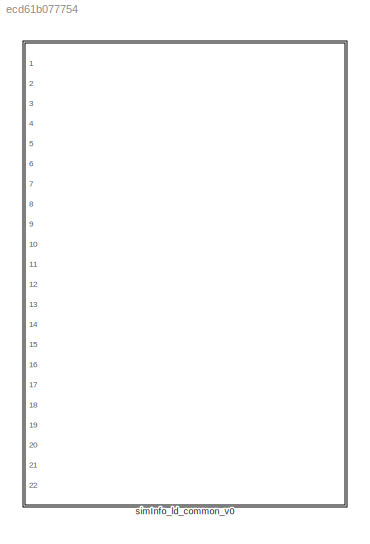
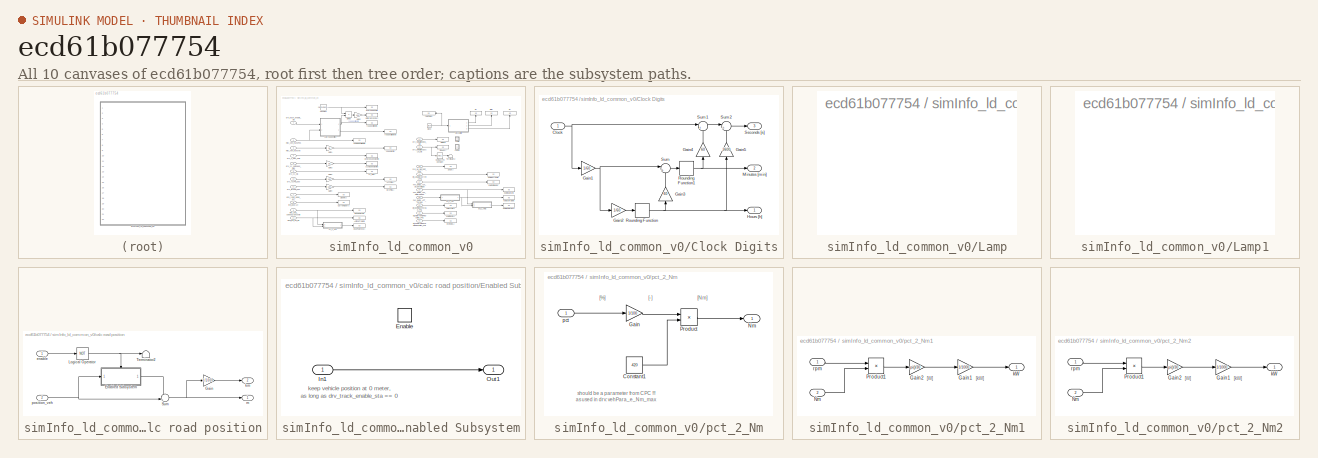
[diagram: thumbnail index - all 10 canvases of the model, root first then tree order]
MODEL slx_ecd61b077754
KIND library
CONFIG AbsTol = auto
CONFIG FixedStep = auto
CONFIG MaxStep = auto
CONFIG MinStep = auto
CONFIG RelTol = 1e-3
CONFIG SampleTimeConstraint = Unconstrained
CONFIG Solver = ode45
CONFIG SolverMode = Auto
CONFIG SolverName = ode45
CONFIG StartTime = 0.0
CONFIG StopTime = 10.0
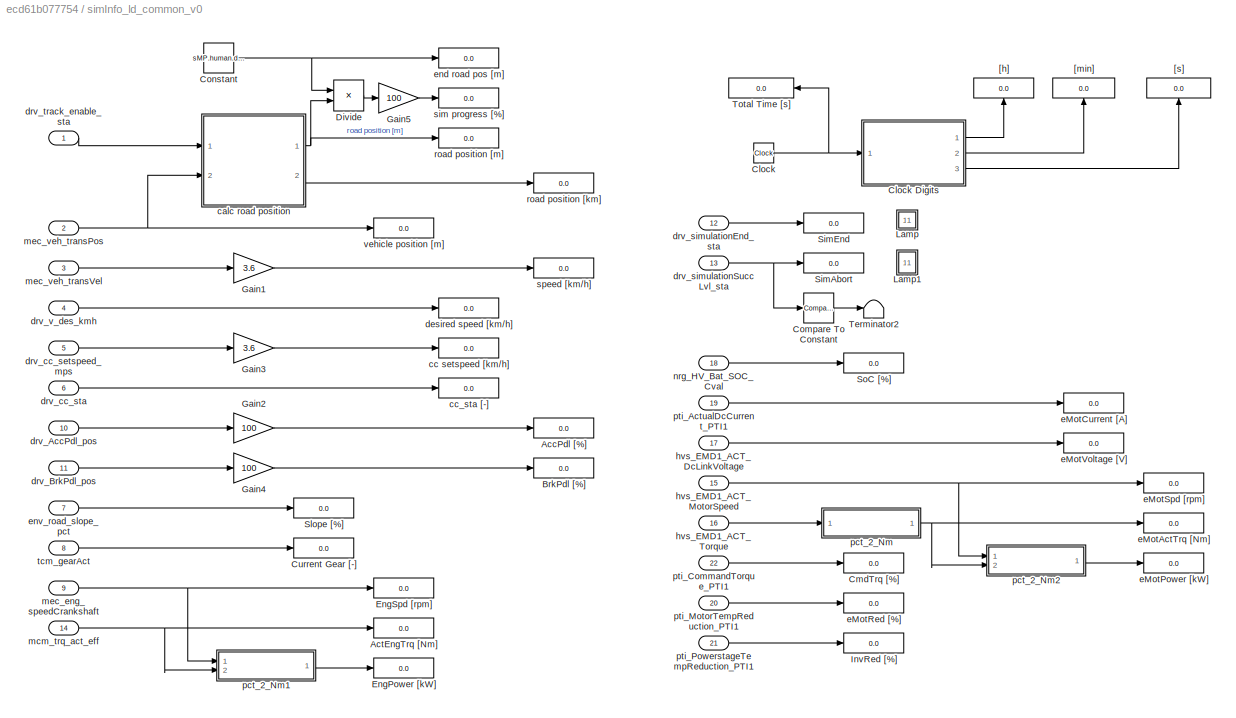
BLOCK [SubSystem] simInfo_ld_common_v0
  Ports = [22]
  RequestExecContextInheritance = off
  Variant = off
  VariantControl = voSimInfo_SIMINFO
BLOCK [Display] simInfo_ld_common_v0/AccPdl [%]
  Decimation = 1
  Format = bank
  Ports = [1]
BLOCK [Display] simInfo_ld_common_v0/ActEngTrq [Nm]
  Decimation = 1
  Format = bank
  Ports = [1]
BLOCK [Display] simInfo_ld_common_v0/BrkPdl [%]
  Decimation = 1
  Format = bank
  Ports = [1]
BLOCK [Clock] simInfo_ld_common_v0/Clock
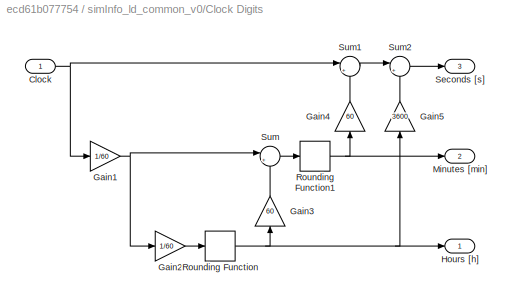
BLOCK [SubSystem] simInfo_ld_common_v0/Clock Digits
  Ports = [1, 3]
  RequestExecContextInheritance = off
  Variant = off
BLOCK [Inport] simInfo_ld_common_v0/Clock Digits/Clock
  IconDisplay = Port number
BLOCK [Gain] simInfo_ld_common_v0/Clock Digits/Gain1
  Gain = 1/60
  OutDataTypeStr = Inherit: Inherit via internal rule
  ParamDataTypeStr = Inherit: Inherit via internal rule
  SaturateOnIntegerOverflow = off
BLOCK [Gain] simInfo_ld_common_v0/Clock Digits/Gain2
  Gain = 1/60
  OutDataTypeStr = Inherit: Inherit via internal rule
  ParamDataTypeStr = Inherit: Inherit via internal rule
  SaturateOnIntegerOverflow = off
BLOCK [Gain] simInfo_ld_common_v0/Clock Digits/Gain3
  Gain = 60
  OutDataTypeStr = Inherit: Inherit via internal rule
  ParamDataTypeStr = Inherit: Inherit via internal rule
  SaturateOnIntegerOverflow = off
BLOCK [Gain] simInfo_ld_common_v0/Clock Digits/Gain4
  Gain = 60
  OutDataTypeStr = Inherit: Inherit via internal rule
  ParamDataTypeStr = Inherit: Inherit via internal rule
  SaturateOnIntegerOverflow = off
BLOCK [Gain] simInfo_ld_common_v0/Clock Digits/Gain5
  Gain = 3600
  OutDataTypeStr = Inherit: Inherit via internal rule
  ParamDataTypeStr = Inherit: Inherit via internal rule
  SaturateOnIntegerOverflow = off
BLOCK [Outport] simInfo_ld_common_v0/Clock Digits/Hours [h]
  IconDisplay = Port number
BLOCK [Outport] simInfo_ld_common_v0/Clock Digits/Minutes [min]
  IconDisplay = Port number
  Port = 2
BLOCK [Rounding] simInfo_ld_common_v0/Clock Digits/Rounding Function
BLOCK [Rounding] simInfo_ld_common_v0/Clock Digits/Rounding Function1
BLOCK [Outport] simInfo_ld_common_v0/Clock Digits/Seconds [s]
  IconDisplay = Port number
  Port = 3
BLOCK [Sum] simInfo_ld_common_v0/Clock Digits/Sum
  IconShape = round
  InputSameDT = off
  Inputs = |+-
  OutDataTypeStr = Inherit: Inherit via internal rule
  Ports = [2, 1]
  SaturateOnIntegerOverflow = off
BLOCK [Sum] simInfo_ld_common_v0/Clock Digits/Sum1
  IconShape = round
  InputSameDT = off
  Inputs = |+-
  OutDataTypeStr = Inherit: Inherit via internal rule
  Ports = [2, 1]
  SaturateOnIntegerOverflow = off
BLOCK [Sum] simInfo_ld_common_v0/Clock Digits/Sum2
  IconShape = round
  InputSameDT = off
  Inputs = |+-
  OutDataTypeStr = Inherit: Inherit via internal rule
  Ports = [2, 1]
  SaturateOnIntegerOverflow = off
BLOCK [Display] simInfo_ld_common_v0/CmdTrq [%]
  Decimation = 1
  Format = bank
  Ports = [1]
BLOCK [Reference] simInfo_ld_common_v0/Compare To Constant  REF=simulink/Logic and Bit
Operations/Compare
To Constant
  Ports = [1, 1]
  SourceBlock = simulink/Logic and Bit\nOperations/Compare\nTo Constant
  SourceType = Compare To Constant
BLOCK [Constant] simInfo_ld_common_v0/Constant
  AttributesFormatString = %<Value>
  Value = sMP.human.drv.cyc.track.m_Way(end,1)
BLOCK [Display] simInfo_ld_common_v0/Current Gear [-]
  Decimation = 2
  Ports = [1]
BLOCK [Product] simInfo_ld_common_v0/Divide
  InputSameDT = off
  Inputs = /*
  OutDataTypeStr = Inherit: Inherit via internal rule
  Ports = [2, 1]
  RndMeth = Floor
  SaturateOnIntegerOverflow = off
BLOCK [Display] simInfo_ld_common_v0/EngPower [kW]
  Decimation = 1
  Format = bank
  Ports = [1]
BLOCK [Display] simInfo_ld_common_v0/EngSpd [rpm]
  Decimation = 1
  Format = bank
  Ports = [1]
BLOCK [Gain] simInfo_ld_common_v0/Gain1
  Gain = 3.6
  OutDataTypeStr = Inherit: Inherit via internal rule
  ParamDataTypeStr = Inherit: Inherit via internal rule
  SaturateOnIntegerOverflow = off
BLOCK [Gain] simInfo_ld_common_v0/Gain2
  Gain = 100
  OutDataTypeStr = Inherit: Inherit via internal rule
  ParamDataTypeStr = Inherit: Inherit via internal rule
  SaturateOnIntegerOverflow = off
BLOCK [Gain] simInfo_ld_common_v0/Gain3
  Gain = 3.6
  OutDataTypeStr = Inherit: Inherit via internal rule
  ParamDataTypeStr = Inherit: Inherit via internal rule
  SaturateOnIntegerOverflow = off
BLOCK [Gain] simInfo_ld_common_v0/Gain4
  Gain = 100
  OutDataTypeStr = Inherit: Inherit via internal rule
  ParamDataTypeStr = Inherit: Inherit via internal rule
  SaturateOnIntegerOverflow = off
BLOCK [Gain] simInfo_ld_common_v0/Gain5
  Gain = 100
  OutDataTypeStr = Inherit: Inherit via internal rule
  ParamDataTypeStr = Inherit: Inherit via internal rule
  SaturateOnIntegerOverflow = off
BLOCK [Display] simInfo_ld_common_v0/InvRed [%]
  Decimation = 1
  Format = bank
  Ports = [1]
BLOCK [SubSystem] simInfo_ld_common_v0/Lamp
  AttributesFormatString = %<Description>
  Description = SimEnd
  DialogController = hmiCreateDDGDialog
  IsWebBlock = on
  MaskHideContents = on
  Ports = []
  RequestExecContextInheritance = off
  Variant = off
BLOCK [SubSystem] simInfo_ld_common_v0/Lamp1
  AttributesFormatString = %<Description>
  Description = SimAbort
  DialogController = hmiCreateDDGDialog
  IsWebBlock = on
  MaskHideContents = on
  Ports = []
  RequestExecContextInheritance = off
  Variant = off
BLOCK [Display] simInfo_ld_common_v0/SimAbort
  Decimation = 1
  Ports = [1]
BLOCK [Display] simInfo_ld_common_v0/SimEnd
  Decimation = 1
  Ports = [1]
BLOCK [Display] simInfo_ld_common_v0/Slope [%]
  Decimation = 1
  Format = bank
  Ports = [1]
BLOCK [Display] simInfo_ld_common_v0/SoC [%]
  Decimation = 1
  Format = bank
  Ports = [1]
BLOCK [Terminator] simInfo_ld_common_v0/Terminator2
BLOCK [Display] simInfo_ld_common_v0/Total Time [s]
  Decimation = 1
  Format = bank
  Ports = [1]
BLOCK [Display] simInfo_ld_common_v0/[h]
  Decimation = 1
  Ports = [1]
BLOCK [Display] simInfo_ld_common_v0/[min]
  Decimation = 1
  Ports = [1]
BLOCK [Display] simInfo_ld_common_v0/[s]
  Decimation = 1
  Format = bank
  Ports = [1]
BLOCK [SubSystem] simInfo_ld_common_v0/calc road position
  Ports = [2, 2]
  RequestExecContextInheritance = off
  Variant = off
BLOCK [SubSystem] simInfo_ld_common_v0/calc road position/Enabled Subsystem
  Ports = [1, 1, 1]
  RequestExecContextInheritance = off
  TreatAsAtomicUnit = on
  Variant = off
BLOCK [EnablePort] simInfo_ld_common_v0/calc road position/Enabled Subsystem/Enable
  Ports = []
BLOCK [Inport] simInfo_ld_common_v0/calc road position/Enabled Subsystem/In1
  IconDisplay = Port number
BLOCK [Outport] simInfo_ld_common_v0/calc road position/Enabled Subsystem/Out1
  IconDisplay = Port number
BLOCK [Gain] simInfo_ld_common_v0/calc road position/Gain
  AttributesFormatString = %<Gain>
  Gain = 1/1000
  OutDataTypeStr = Inherit: Inherit via internal rule
  ParamDataTypeStr = Inherit: Inherit via internal rule
  SaturateOnIntegerOverflow = off
BLOCK [Logic] simInfo_ld_common_v0/calc road position/Logical Operator
  AllPortsSameDT = off
  Operator = NOT
  OutDataTypeStr = boolean
  Ports = [1, 1]
BLOCK [Sum] simInfo_ld_common_v0/calc road position/Sum
  IconShape = round
  InputSameDT = off
  Inputs = -+|
  OutDataTypeStr = Inherit: Inherit via internal rule
  Ports = [2, 1]
  SaturateOnIntegerOverflow = off
BLOCK [Terminator] simInfo_ld_common_v0/calc road position/Terminator2
BLOCK [Inport] simInfo_ld_common_v0/calc road position/enable
  IconDisplay = Port number
BLOCK [Outport] simInfo_ld_common_v0/calc road position/km
  IconDisplay = Port number
  Port = 2
BLOCK [Outport] simInfo_ld_common_v0/calc road position/m
  IconDisplay = Port number
BLOCK [Inport] simInfo_ld_common_v0/calc road position/position_veh
  IconDisplay = Port number
  Port = 2
BLOCK [Display] simInfo_ld_common_v0/cc setspeed [km//h]
  Decimation = 1
  Format = bank
  Ports = [1]
BLOCK [Display] simInfo_ld_common_v0/cc_sta [-]
  Decimation = 1
  Format = bank
  Ports = [1]
BLOCK [Display] simInfo_ld_common_v0/desired speed [km//h]
  Decimation = 1
  Format = bank
  Ports = [1]
BLOCK [Inport] simInfo_ld_common_v0/drv_AccPdl_pos
  IconDisplay = Port number
  Port = 10
BLOCK [Inport] simInfo_ld_common_v0/drv_BrkPdl_pos
  IconDisplay = Port number
  Port = 11
BLOCK [Inport] simInfo_ld_common_v0/drv_cc_setspeed_mps
  IconDisplay = Port number
  Port = 5
BLOCK [Inport] simInfo_ld_common_v0/drv_cc_sta
  IconDisplay = Port number
  Port = 6
BLOCK [Inport] simInfo_ld_common_v0/drv_simulationEnd_sta
  IconDisplay = Port number
  Port = 12
BLOCK [Inport] simInfo_ld_common_v0/drv_simulationSuccLvl_sta
  IconDisplay = Port number
  Port = 13
BLOCK [Inport] simInfo_ld_common_v0/drv_track_enable_sta
  IconDisplay = Port number
BLOCK [Inport] simInfo_ld_common_v0/drv_v_des_kmh
  IconDisplay = Port number
  Port = 4
BLOCK [Display] simInfo_ld_common_v0/eMotActTrq [Nm]
  Decimation = 1
  Format = bank
  Ports = [1]
BLOCK [Display] simInfo_ld_common_v0/eMotCurrent [A]
  Decimation = 1
  Format = bank
  Ports = [1]
BLOCK [Display] simInfo_ld_common_v0/eMotPower [kW]
  Decimation = 1
  Format = bank
  Ports = [1]
BLOCK [Display] simInfo_ld_common_v0/eMotRed [%]
  Decimation = 1
  Format = bank
  Ports = [1]
BLOCK [Display] simInfo_ld_common_v0/eMotSpd [rpm]
  Decimation = 1
  Format = bank
  Ports = [1]
BLOCK [Display] simInfo_ld_common_v0/eMotVoltage [V]
  Decimation = 1
  Format = bank
  Ports = [1]
BLOCK [Display] simInfo_ld_common_v0/end road pos [m]
  Decimation = 1
  Format = bank
  Ports = [1]
BLOCK [Inport] simInfo_ld_common_v0/env_road_slope_pct
  IconDisplay = Port number
  Port = 7
BLOCK [Inport] simInfo_ld_common_v0/hvs_EMD1_ACT_DcLinkVoltage
  IconDisplay = Port number
  Port = 17
BLOCK [Inport] simInfo_ld_common_v0/hvs_EMD1_ACT_MotorSpeed
  IconDisplay = Port number
  Port = 15
BLOCK [Inport] simInfo_ld_common_v0/hvs_EMD1_ACT_Torque
  IconDisplay = Port number
  Port = 16
BLOCK [Inport] simInfo_ld_common_v0/mcm_trq_act_eff
  IconDisplay = Port number
  Port = 14
BLOCK [Inport] simInfo_ld_common_v0/mec_eng_speedCrankshaft
  IconDisplay = Port number
  Port = 9
BLOCK [Inport] simInfo_ld_common_v0/mec_veh_transPos
  IconDisplay = Port number
  Port = 2
BLOCK [Inport] simInfo_ld_common_v0/mec_veh_transVel
  IconDisplay = Port number
  Port = 3
BLOCK [Inport] simInfo_ld_common_v0/nrg_HV_Bat_SOC_Cval
  IconDisplay = Port number
  Port = 18
BLOCK [SubSystem] simInfo_ld_common_v0/pct_2_Nm
  Ports = [1, 1]
  RequestExecContextInheritance = off
  Variant = off
BLOCK [Constant] simInfo_ld_common_v0/pct_2_Nm/Constant1
  AttributesFormatString = %<Value>
  Value = 420
BLOCK [Gain] simInfo_ld_common_v0/pct_2_Nm/Gain
  AttributesFormatString = %<Gain>
  Gain = 1/100
  OutDataTypeStr = Inherit: Inherit via internal rule
  ParamDataTypeStr = Inherit: Inherit via internal rule
  SaturateOnIntegerOverflow = off
BLOCK [Outport] simInfo_ld_common_v0/pct_2_Nm/Nm
  IconDisplay = Port number
BLOCK [Product] simInfo_ld_common_v0/pct_2_Nm/Product
  InputSameDT = off
  OutDataTypeStr = Inherit: Inherit via internal rule
  Ports = [2, 1]
  RndMeth = Floor
  SaturateOnIntegerOverflow = off
BLOCK [Inport] simInfo_ld_common_v0/pct_2_Nm/pct
  IconDisplay = Port number
BLOCK [SubSystem] simInfo_ld_common_v0/pct_2_Nm1
  Ports = [2, 1]
  RequestExecContextInheritance = off
  Variant = off
BLOCK [Gain] simInfo_ld_common_v0/pct_2_Nm1/Gain1
  AttributesFormatString = %<Gain>
  Gain = 1/1000
  OutDataTypeStr = Inherit: Inherit via internal rule
  ParamDataTypeStr = Inherit: Inherit via internal rule
  SaturateOnIntegerOverflow = off
BLOCK [Gain] simInfo_ld_common_v0/pct_2_Nm1/Gain2
  AttributesFormatString = %<Gain>
  Gain = pi()/30
  OutDataTypeStr = Inherit: Inherit via internal rule
  ParamDataTypeStr = Inherit: Inherit via internal rule
  SaturateOnIntegerOverflow = off
BLOCK [Inport] simInfo_ld_common_v0/pct_2_Nm1/Nm
  IconDisplay = Port number
  Port = 2
BLOCK [Product] simInfo_ld_common_v0/pct_2_Nm1/Product1
  InputSameDT = off
  OutDataTypeStr = Inherit: Inherit via internal rule
  Ports = [2, 1]
  RndMeth = Floor
  SaturateOnIntegerOverflow = off
BLOCK [Outport] simInfo_ld_common_v0/pct_2_Nm1/kW
  IconDisplay = Port number
BLOCK [Inport] simInfo_ld_common_v0/pct_2_Nm1/rpm
  IconDisplay = Port number
BLOCK [SubSystem] simInfo_ld_common_v0/pct_2_Nm2
  Ports = [2, 1]
  RequestExecContextInheritance = off
  Variant = off
BLOCK [Gain] simInfo_ld_common_v0/pct_2_Nm2/Gain1
  AttributesFormatString = %<Gain>
  Gain = 1/1000
  OutDataTypeStr = Inherit: Inherit via internal rule
  ParamDataTypeStr = Inherit: Inherit via internal rule
  SaturateOnIntegerOverflow = off
BLOCK [Gain] simInfo_ld_common_v0/pct_2_Nm2/Gain2
  AttributesFormatString = %<Gain>
  Gain = pi()/30
  OutDataTypeStr = Inherit: Inherit via internal rule
  ParamDataTypeStr = Inherit: Inherit via internal rule
  SaturateOnIntegerOverflow = off
BLOCK [Inport] simInfo_ld_common_v0/pct_2_Nm2/Nm
  IconDisplay = Port number
  Port = 2
BLOCK [Product] simInfo_ld_common_v0/pct_2_Nm2/Product1
  InputSameDT = off
  OutDataTypeStr = Inherit: Inherit via internal rule
  Ports = [2, 1]
  RndMeth = Floor
  SaturateOnIntegerOverflow = off
BLOCK [Outport] simInfo_ld_common_v0/pct_2_Nm2/kW
  IconDisplay = Port number
BLOCK [Inport] simInfo_ld_common_v0/pct_2_Nm2/rpm
  IconDisplay = Port number
BLOCK [Inport] simInfo_ld_common_v0/pti_ActualDcCurrent_PTI1
  IconDisplay = Port number
  Port = 19
BLOCK [Inport] simInfo_ld_common_v0/pti_CommandTorque_PTI1
  IconDisplay = Port number
  Port = 22
BLOCK [Inport] simInfo_ld_common_v0/pti_MotorTempReduction_PTI1
  IconDisplay = Port number
  Port = 20
BLOCK [Inport] simInfo_ld_common_v0/pti_PowerstageTempReduction_PTI1
  IconDisplay = Port number
  Port = 21
BLOCK [Display] simInfo_ld_common_v0/road position [km]
  Decimation = 1
  Format = bank
  Ports = [1]
BLOCK [Display] simInfo_ld_common_v0/road position [m]
  Decimation = 1
  Format = bank
  Ports = [1]
BLOCK [Display] simInfo_ld_common_v0/sim progress [%]
  Decimation = 1
  Format = bank
  Ports = [1]
BLOCK [Display] simInfo_ld_common_v0/speed [km//h]
  Decimation = 1
  Format = bank
  Ports = [1]
BLOCK [Inport] simInfo_ld_common_v0/tcm_gearAct
  IconDisplay = Port number
  Port = 8
BLOCK [Display] simInfo_ld_common_v0/vehicle position [m]
  Decimation = 1
  Format = bank
  Ports = [1]
ANNOTATION simInfo_ld_common_v0/calc road position/Enabled Subsystem: keep vehicle position at 0 meter, as long as drv_track_enable_sta == 0
ANNOTATION simInfo_ld_common_v0/pct_2_Nm: [%]
ANNOTATION simInfo_ld_common_v0/pct_2_Nm: [-]
ANNOTATION simInfo_ld_common_v0/pct_2_Nm: [Nm]
ANNOTATION simInfo_ld_common_v0/pct_2_Nm: should be a parameter from CPC !!! as used in drv: vehPara_e_Nm_max
ANNOTATION simInfo_ld_common_v0/pct_2_Nm1: [W]
ANNOTATION simInfo_ld_common_v0/pct_2_Nm1: [kW]
ANNOTATION simInfo_ld_common_v0/pct_2_Nm2: [W]
ANNOTATION simInfo_ld_common_v0/pct_2_Nm2: [kW]
NET simInfo_ld_common_v0/Clock Digits/Clock:1 -> simInfo_ld_common_v0/Clock Digits/Gain1:1, simInfo_ld_common_v0/Clock Digits/Sum1:1
NET simInfo_ld_common_v0/Clock Digits/Gain1:1 -> simInfo_ld_common_v0/Clock Digits/Gain2:1, simInfo_ld_common_v0/Clock Digits/Sum:1
LINE simInfo_ld_common_v0/Clock Digits/Gain2:1 -> simInfo_ld_common_v0/Clock Digits/Rounding Function:1
LINE simInfo_ld_common_v0/Clock Digits/Gain3:1 -> simInfo_ld_common_v0/Clock Digits/Sum:2
LINE simInfo_ld_common_v0/Clock Digits/Gain4:1 -> simInfo_ld_common_v0/Clock Digits/Sum1:2
LINE simInfo_ld_common_v0/Clock Digits/Gain5:1 -> simInfo_ld_common_v0/Clock Digits/Sum2:2
NET simInfo_ld_common_v0/Clock Digits/Rounding Function1:1 -> simInfo_ld_common_v0/Clock Digits/Gain4:1, simInfo_ld_common_v0/Clock Digits/Minutes [min]:1
NET simInfo_ld_common_v0/Clock Digits/Rounding Function:1 -> simInfo_ld_common_v0/Clock Digits/Gain3:1, simInfo_ld_common_v0/Clock Digits/Gain5:1, simInfo_ld_common_v0/Clock Digits/Hours [h]:1
LINE simInfo_ld_common_v0/Clock Digits/Sum1:1 -> simInfo_ld_common_v0/Clock Digits/Sum2:1
LINE simInfo_ld_common_v0/Clock Digits/Sum2:1 -> simInfo_ld_common_v0/Clock Digits/Seconds [s]:1
LINE simInfo_ld_common_v0/Clock Digits/Sum:1 -> simInfo_ld_common_v0/Clock Digits/Rounding Function1:1
LINE simInfo_ld_common_v0/Clock Digits:1 -> simInfo_ld_common_v0/[h]:1
LINE simInfo_ld_common_v0/Clock Digits:2 -> simInfo_ld_common_v0/[min]:1
LINE simInfo_ld_common_v0/Clock Digits:3 -> simInfo_ld_common_v0/[s]:1
NET simInfo_ld_common_v0/Clock:1 -> simInfo_ld_common_v0/Clock Digits:1, simInfo_ld_common_v0/Total Time [s]:1
LINE simInfo_ld_common_v0/Compare To Constant:1 -> simInfo_ld_common_v0/Terminator2:1
NET simInfo_ld_common_v0/Constant:1 -> simInfo_ld_common_v0/Divide:1, simInfo_ld_common_v0/end road pos [m]:1
LINE simInfo_ld_common_v0/Divide:1 -> simInfo_ld_common_v0/Gain5:1
LINE simInfo_ld_common_v0/Gain1:1 -> simInfo_ld_common_v0/speed [km//h]:1
LINE simInfo_ld_common_v0/Gain2:1 -> simInfo_ld_common_v0/AccPdl [%]:1
LINE simInfo_ld_common_v0/Gain3:1 -> simInfo_ld_common_v0/cc setspeed [km//h]:1
LINE simInfo_ld_common_v0/Gain4:1 -> simInfo_ld_common_v0/BrkPdl [%]:1
LINE simInfo_ld_common_v0/Gain5:1 -> simInfo_ld_common_v0/sim progress [%]:1
LINE simInfo_ld_common_v0/calc road position/Enabled Subsystem/In1:1 -> simInfo_ld_common_v0/calc road position/Enabled Subsystem/Out1:1
LINE simInfo_ld_common_v0/calc road position/Enabled Subsystem:1 -> simInfo_ld_common_v0/calc road position/Sum:1
LINE simInfo_ld_common_v0/calc road position/Gain:1 -> simInfo_ld_common_v0/calc road position/km:1
NET simInfo_ld_common_v0/calc road position/Logical Operator:1 -> simInfo_ld_common_v0/calc road position/Enabled Subsystem:enable, simInfo_ld_common_v0/calc road position/Terminator2:1
NET simInfo_ld_common_v0/calc road position/Sum:1 -> simInfo_ld_common_v0/calc road position/Gain:1, simInfo_ld_common_v0/calc road position/m:1
LINE simInfo_ld_common_v0/calc road position/enable:1 -> simInfo_ld_common_v0/calc road position/Logical Operator:1
NET simInfo_ld_common_v0/calc road position/position_veh:1 -> simInfo_ld_common_v0/calc road position/Enabled Subsystem:1, simInfo_ld_common_v0/calc road position/Sum:2
NET simInfo_ld_common_v0/calc road position:1 -> simInfo_ld_common_v0/Divide:2, simInfo_ld_common_v0/road position [m]:1
LINE simInfo_ld_common_v0/calc road position:2 -> simInfo_ld_common_v0/road position [km]:1
LINE simInfo_ld_common_v0/drv_AccPdl_pos:1 -> simInfo_ld_common_v0/Gain2:1
LINE simInfo_ld_common_v0/drv_BrkPdl_pos:1 -> simInfo_ld_common_v0/Gain4:1
LINE simInfo_ld_common_v0/drv_cc_setspeed_mps:1 -> simInfo_ld_common_v0/Gain3:1
LINE simInfo_ld_common_v0/drv_cc_sta:1 -> simInfo_ld_common_v0/cc_sta [-]:1
LINE simInfo_ld_common_v0/drv_simulationEnd_sta:1 -> simInfo_ld_common_v0/SimEnd:1
NET simInfo_ld_common_v0/drv_simulationSuccLvl_sta:1 -> simInfo_ld_common_v0/Compare To Constant:1, simInfo_ld_common_v0/SimAbort:1
LINE simInfo_ld_common_v0/drv_track_enable_sta:1 -> simInfo_ld_common_v0/calc road position:1
LINE simInfo_ld_common_v0/drv_v_des_kmh:1 -> simInfo_ld_common_v0/desired speed [km//h]:1
LINE simInfo_ld_common_v0/env_road_slope_pct:1 -> simInfo_ld_common_v0/Slope [%]:1
LINE simInfo_ld_common_v0/hvs_EMD1_ACT_DcLinkVoltage:1 -> simInfo_ld_common_v0/eMotVoltage [V]:1
NET simInfo_ld_common_v0/hvs_EMD1_ACT_MotorSpeed:1 -> simInfo_ld_common_v0/eMotSpd [rpm]:1, simInfo_ld_common_v0/pct_2_Nm2:1
LINE simInfo_ld_common_v0/hvs_EMD1_ACT_Torque:1 -> simInfo_ld_common_v0/pct_2_Nm:1
NET simInfo_ld_common_v0/mcm_trq_act_eff:1 -> simInfo_ld_common_v0/ActEngTrq [Nm]:1, simInfo_ld_common_v0/pct_2_Nm1:2
NET simInfo_ld_common_v0/mec_eng_speedCrankshaft:1 -> simInfo_ld_common_v0/EngSpd [rpm]:1, simInfo_ld_common_v0/pct_2_Nm1:1
NET simInfo_ld_common_v0/mec_veh_transPos:1 -> simInfo_ld_common_v0/calc road position:2, simInfo_ld_common_v0/vehicle position [m]:1
LINE simInfo_ld_common_v0/mec_veh_transVel:1 -> simInfo_ld_common_v0/Gain1:1
LINE simInfo_ld_common_v0/nrg_HV_Bat_SOC_Cval:1 -> simInfo_ld_common_v0/SoC [%]:1
LINE simInfo_ld_common_v0/pct_2_Nm/Constant1:1 -> simInfo_ld_common_v0/pct_2_Nm/Product:2
LINE simInfo_ld_common_v0/pct_2_Nm/Gain:1 -> simInfo_ld_common_v0/pct_2_Nm/Product:1
LINE simInfo_ld_common_v0/pct_2_Nm/Product:1 -> simInfo_ld_common_v0/pct_2_Nm/Nm:1
LINE simInfo_ld_common_v0/pct_2_Nm/pct:1 -> simInfo_ld_common_v0/pct_2_Nm/Gain:1
LINE simInfo_ld_common_v0/pct_2_Nm1/Gain1:1 -> simInfo_ld_common_v0/pct_2_Nm1/kW:1
LINE simInfo_ld_common_v0/pct_2_Nm1/Gain2:1 -> simInfo_ld_common_v0/pct_2_Nm1/Gain1:1
LINE simInfo_ld_common_v0/pct_2_Nm1/Nm:1 -> simInfo_ld_common_v0/pct_2_Nm1/Product1:2
LINE simInfo_ld_common_v0/pct_2_Nm1/Product1:1 -> simInfo_ld_common_v0/pct_2_Nm1/Gain2:1
LINE simInfo_ld_common_v0/pct_2_Nm1/rpm:1 -> simInfo_ld_common_v0/pct_2_Nm1/Product1:1
LINE simInfo_ld_common_v0/pct_2_Nm1:1 -> simInfo_ld_common_v0/EngPower [kW]:1
LINE simInfo_ld_common_v0/pct_2_Nm2/Gain1:1 -> simInfo_ld_common_v0/pct_2_Nm2/kW:1
LINE simInfo_ld_common_v0/pct_2_Nm2/Gain2:1 -> simInfo_ld_common_v0/pct_2_Nm2/Gain1:1
LINE simInfo_ld_common_v0/pct_2_Nm2/Nm:1 -> simInfo_ld_common_v0/pct_2_Nm2/Product1:2
LINE simInfo_ld_common_v0/pct_2_Nm2/Product1:1 -> simInfo_ld_common_v0/pct_2_Nm2/Gain2:1
LINE simInfo_ld_common_v0/pct_2_Nm2/rpm:1 -> simInfo_ld_common_v0/pct_2_Nm2/Product1:1
LINE simInfo_ld_common_v0/pct_2_Nm2:1 -> simInfo_ld_common_v0/eMotPower [kW]:1
NET simInfo_ld_common_v0/pct_2_Nm:1 -> simInfo_ld_common_v0/eMotActTrq [Nm]:1, simInfo_ld_common_v0/pct_2_Nm2:2
LINE simInfo_ld_common_v0/pti_ActualDcCurrent_PTI1:1 -> simInfo_ld_common_v0/eMotCurrent [A]:1
LINE simInfo_ld_common_v0/pti_CommandTorque_PTI1:1 -> simInfo_ld_common_v0/CmdTrq [%]:1
LINE simInfo_ld_common_v0/pti_MotorTempReduction_PTI1:1 -> simInfo_ld_common_v0/eMotRed [%]:1
LINE simInfo_ld_common_v0/pti_PowerstageTempReduction_PTI1:1 -> simInfo_ld_common_v0/InvRed [%]:1
LINE simInfo_ld_common_v0/tcm_gearAct:1 -> simInfo_ld_common_v0/Current Gear [-]:1
note: NET lines group one-source signal fan-out (src -> all destinations, sorted); 1:1 wires keep LINE
